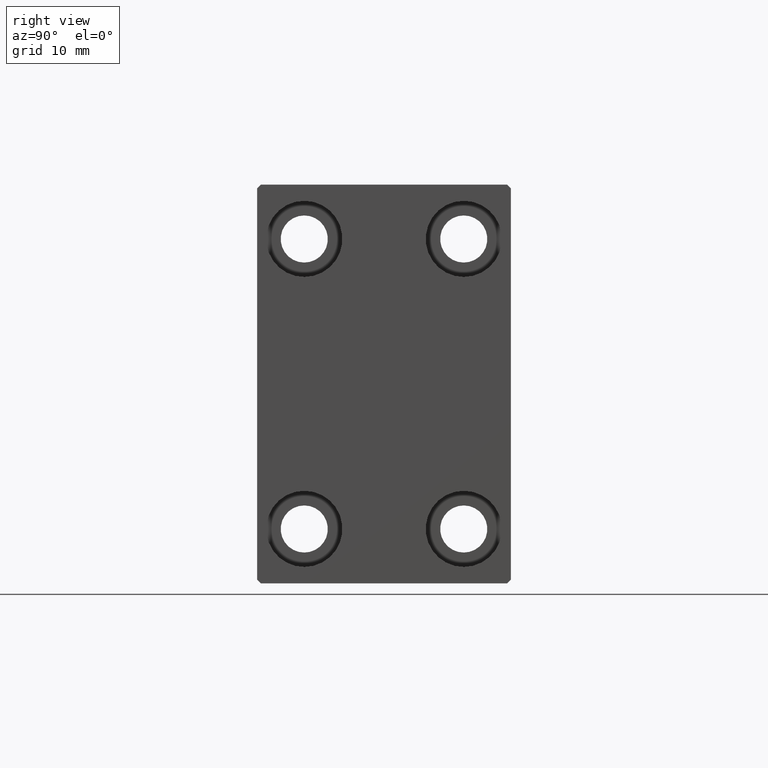
[diagram: clean part render]
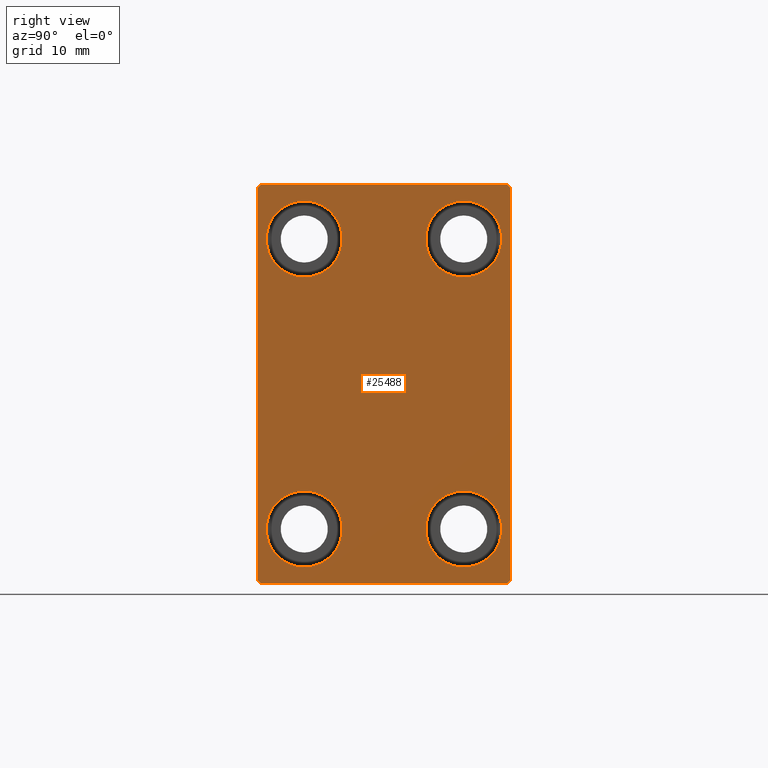
[diagram: same view with one face highlighted and labeled with its STEP entity id]
A machine part, right view. The second image highlights one B-rep face of the part: STEP entity #25488.
In plain terms, the highlighted planar face has unit normal (1, 0, 0).
Its self-contained STEP definition (entity closure, byte-faithful):
#74 = VECTOR ( 'NONE', #17671, 1000.000000000000114 ) ;
#251 = EDGE_LOOP ( 'NONE', ( #37012, #20372 ) ) ;
#693 = LINE ( 'NONE', #18234, #23848 ) ;
#872 = VERTEX_POINT ( 'NONE', #23555 ) ;
#1037 = VERTEX_POINT ( 'NONE', #34331 ) ;
#1508 = LINE ( 'NONE', #14794, #41056 ) ;
#2621 = CARTESIAN_POINT ( 'NONE',  ( 56.00000000000000000, 11.00000000000000355, 20.00000000000000000 ) ) ;
#2844 = DIRECTION ( 'NONE',  ( 0.000000000000000000, 0.000000000000000000, 1.000000000000000000 ) ) ;
#3070 = AXIS2_PLACEMENT_3D ( 'NONE', #28839, #42565, #28181 ) ;
#3360 = DIRECTION ( 'NONE',  ( 0.000000000000000000, 0.000000000000000000, 1.000000000000000000 ) ) ;
#3897 = CARTESIAN_POINT ( 'NONE',  ( 56.00000000000000000, -11.00000000000000355, -20.00000000000000000 ) ) ;
#3941 = VECTOR ( 'NONE', #16958, 1000.000000000000114 ) ;
#3944 = CARTESIAN_POINT ( 'NONE',  ( 56.00000000000000000, 22.25000000000000711, -22.25000000000000711 ) ) ;
#5371 = VERTEX_POINT ( 'NONE', #14354 ) ;
#5712 = EDGE_CURVE ( 'NONE', #872, #11405, #36314, .T. ) ;
#5959 = CARTESIAN_POINT ( 'NONE',  ( 56.00000000000000000, -22.25000000000000355, -22.25000000000000355 ) ) ;
#6047 = EDGE_CURVE ( 'NONE', #10192, #8636, #28656, .T. ) ;
#6102 = VECTOR ( 'NONE', #11431, 1000.000000000000000 ) ;
#6842 = AXIS2_PLACEMENT_3D ( 'NONE', #41136, #37530, #10100 ) ;
#7156 = AXIS2_PLACEMENT_3D ( 'NONE', #26582, #40077, #43002 ) ;
#7189 = CIRCLE ( 'NONE', #12232, 5.250000000000000888 ) ;
#7537 = VECTOR ( 'NONE', #12861, 1000.000000000000114 ) ;
#8323 = EDGE_CURVE ( 'NONE', #18112, #5371, #42240, .T. ) ;
#8455 = CARTESIAN_POINT ( 'NONE',  ( 56.00000000000000000, -11.00000000000000355, -14.75000000000000000 ) ) ;
#8636 = VERTEX_POINT ( 'NONE', #10928 ) ;
#8701 = CARTESIAN_POINT ( 'NONE',  ( 56.00000000000000000, -16.99999999999999289, 27.49999999999999645 ) ) ;
#8815 = FACE_BOUND ( 'NONE', #43334, .T. ) ;
#8899 = EDGE_CURVE ( 'NONE', #20283, #18112, #19454, .T. ) ;
#9026 = AXIS2_PLACEMENT_3D ( 'NONE', #2621, #13196, #43789 ) ;
#9262 = ORIENTED_EDGE ( 'NONE', *, *, #11283, .T. ) ;
#9501 = AXIS2_PLACEMENT_3D ( 'NONE', #36807, #43336, #2844 ) ;
#9502 = EDGE_CURVE ( 'NONE', #21472, #24737, #34123, .T. ) ;
#10100 = DIRECTION ( 'NONE',  ( 0.000000000000000000, 0.000000000000000000, 1.000000000000000000 ) ) ;
#10192 = VERTEX_POINT ( 'NONE', #27916 ) ;
#10209 = DIRECTION ( 'NONE',  ( 0.000000000000000000, 0.000000000000000000, 1.000000000000000000 ) ) ;
#10237 = ORIENTED_EDGE ( 'NONE', *, *, #8323, .T. ) ;
#10339 = ORIENTED_EDGE ( 'NONE', *, *, #32576, .T. ) ;
#10481 = ORIENTED_EDGE ( 'NONE', *, *, #9502, .T. ) ;
#10928 = CARTESIAN_POINT ( 'NONE',  ( 56.00000000000000000, 16.99999999999999289, 27.50000000000000355 ) ) ;
#11120 = CARTESIAN_POINT ( 'NONE',  ( 56.00000000000000000, -11.00000000000000355, -25.25000000000000000 ) ) ;
#11142 = ORIENTED_EDGE ( 'NONE', *, *, #11287, .T. ) ;
#11283 = EDGE_CURVE ( 'NONE', #8636, #17401, #39059, .T. ) ;
#11287 = EDGE_CURVE ( 'NONE', #1037, #24600, #17699, .T. ) ;
#11405 = VERTEX_POINT ( 'NONE', #39967 ) ;
#11431 = DIRECTION ( 'NONE',  ( 0.000000000000000000, 1.000000000000000000, 0.000000000000000000 ) ) ;
#12043 = ORIENTED_EDGE ( 'NONE', *, *, #34789, .T. ) ;
#12232 = AXIS2_PLACEMENT_3D ( 'NONE', #3897, #34042, #10209 ) ;
#12319 = CARTESIAN_POINT ( 'NONE',  ( 56.00000000000000000, -16.99999999999999289, -27.50000000000000355 ) ) ;
#12861 = DIRECTION ( 'NONE',  ( 0.000000000000000000, -0.7071067811865474617, -0.7071067811865474617 ) ) ;
#13122 = CARTESIAN_POINT ( 'NONE',  ( 56.00000000000000000, -11.00000000000000355, 14.75000000000000000 ) ) ;
#13196 = DIRECTION ( 'NONE',  ( -1.000000000000000000, -0.000000000000000000, -0.000000000000000000 ) ) ;
#13800 = CIRCLE ( 'NONE', #9501, 5.250000000000000888 ) ;
#14138 = CARTESIAN_POINT ( 'NONE',  ( 56.00000000000000000, -17.50000000000000000, -26.99999999999999645 ) ) ;
#14354 = CARTESIAN_POINT ( 'NONE',  ( 56.00000000000000000, 17.00000000000000711, -27.50000000000000355 ) ) ;
#14667 = ORIENTED_EDGE ( 'NONE', *, *, #8899, .T. ) ;
#14794 = CARTESIAN_POINT ( 'NONE',  ( 56.00000000000000000, -17.50000000000000000, 27.49999999999999645 ) ) ;
#14802 = CARTESIAN_POINT ( 'NONE',  ( 56.00000000000000000, -17.50000000000000000, -27.50000000000000355 ) ) ;
#15006 = DIRECTION ( 'NONE',  ( 0.000000000000000000, 0.000000000000000000, 1.000000000000000000 ) ) ;
#15153 = CARTESIAN_POINT ( 'NONE',  ( 56.00000000000000000, 11.00000000000000355, -14.75000000000000000 ) ) ;
#16958 = DIRECTION ( 'NONE',  ( -0.000000000000000000, 0.7071067811865474617, -0.7071067811865474617 ) ) ;
#17401 = VERTEX_POINT ( 'NONE', #8701 ) ;
#17671 = DIRECTION ( 'NONE',  ( -0.000000000000000000, 0.7071067811865474617, 0.7071067811865474617 ) ) ;
#17699 = CIRCLE ( 'NONE', #32030, 5.250000000000000888 ) ;
#17883 = DIRECTION ( 'NONE',  ( -0.000000000000000000, -0.7071067811865474617, 0.7071067811865474617 ) ) ;
#18112 = VERTEX_POINT ( 'NONE', #12319 ) ;
#18234 = CARTESIAN_POINT ( 'NONE',  ( 56.00000000000000000, 17.50000000000000711, -27.50000000000000355 ) ) ;
#18388 = DIRECTION ( 'NONE',  ( 0.000000000000000000, 0.000000000000000000, -1.000000000000000000 ) ) ;
#18832 = AXIS2_PLACEMENT_3D ( 'NONE', #21695, #28655, #42385 ) ;
#19158 = VERTEX_POINT ( 'NONE', #43638 ) ;
#19167 = FACE_BOUND ( 'NONE', #24790, .T. ) ;
#19392 = FACE_OUTER_BOUND ( 'NONE', #34421, .T. ) ;
#19454 = LINE ( 'NONE', #5959, #3941 ) ;
#20283 = VERTEX_POINT ( 'NONE', #14138 ) ;
#20372 = ORIENTED_EDGE ( 'NONE', *, *, #26218, .T. ) ;
#20508 = EDGE_LOOP ( 'NONE', ( #10339, #35380 ) ) ;
#21472 = VERTEX_POINT ( 'NONE', #31075 ) ;
#21695 = CARTESIAN_POINT ( 'NONE',  ( 56.00000000000000000, -11.00000000000000355, -20.00000000000000000 ) ) ;
#21740 = EDGE_CURVE ( 'NONE', #24737, #21472, #35887, .T. ) ;
#22462 = VERTEX_POINT ( 'NONE', #23113 ) ;
#23113 = CARTESIAN_POINT ( 'NONE',  ( 56.00000000000000000, 17.50000000000000711, -27.00000000000000355 ) ) ;
#23357 = VERTEX_POINT ( 'NONE', #8455 ) ;
#23555 = CARTESIAN_POINT ( 'NONE',  ( 56.00000000000000000, 11.00000000000000355, 25.25000000000000000 ) ) ;
#23848 = VECTOR ( 'NONE', #28143, 1000.000000000000000 ) ;
#24407 = AXIS2_PLACEMENT_3D ( 'NONE', #34832, #28095, #3360 ) ;
#24600 = VERTEX_POINT ( 'NONE', #15153 ) ;
#24737 = VERTEX_POINT ( 'NONE', #13122 ) ;
#24790 = EDGE_LOOP ( 'NONE', ( #38496, #10481 ) ) ;
#25444 = ORIENTED_EDGE ( 'NONE', *, *, #6047, .T. ) ;
#25488 = ADVANCED_FACE ( 'NONE', ( #8815, #19167, #33322, #29275, #19392 ), #29506, .T. ) ;
#26218 = EDGE_CURVE ( 'NONE', #23357, #37861, #7189, .T. ) ;
#26582 = CARTESIAN_POINT ( 'NONE',  ( 56.00000000000000000, 0.000000000000000000, 0.000000000000000000 ) ) ;
#26636 = ORIENTED_EDGE ( 'NONE', *, *, #30024, .T. ) ;
#26918 = ORIENTED_EDGE ( 'NONE', *, *, #32240, .T. ) ;
#27916 = CARTESIAN_POINT ( 'NONE',  ( 56.00000000000000000, 17.50000000000000000, 26.99999999999999645 ) ) ;
#28095 = DIRECTION ( 'NONE',  ( -1.000000000000000000, -0.000000000000000000, -0.000000000000000000 ) ) ;
#28143 = DIRECTION ( 'NONE',  ( 0.000000000000000000, -1.261617073437677752E-16, 1.000000000000000000 ) ) ;
#28181 = DIRECTION ( 'NONE',  ( 0.000000000000000000, 0.000000000000000000, 1.000000000000000000 ) ) ;
#28437 = VECTOR ( 'NONE', #43123, 1000.000000000000000 ) ;
#28655 = DIRECTION ( 'NONE',  ( -1.000000000000000000, -0.000000000000000000, -0.000000000000000000 ) ) ;
#28656 = LINE ( 'NONE', #35849, #30565 ) ;
#28839 = CARTESIAN_POINT ( 'NONE',  ( 56.00000000000000000, 11.00000000000000355, -20.00000000000000000 ) ) ;
#29275 = FACE_BOUND ( 'NONE', #251, .T. ) ;
#29506 = PLANE ( 'NONE',  #7156 ) ;
#29621 = CARTESIAN_POINT ( 'NONE',  ( 56.00000000000000000, 11.00000000000000355, -20.00000000000000000 ) ) ;
#30024 = EDGE_CURVE ( 'NONE', #5371, #22462, #34754, .T. ) ;
#30565 = VECTOR ( 'NONE', #17883, 1000.000000000000114 ) ;
#30575 = EDGE_CURVE ( 'NONE', #19158, #20283, #1508, .T. ) ;
#31075 = CARTESIAN_POINT ( 'NONE',  ( 56.00000000000000000, -11.00000000000000355, 25.25000000000000000 ) ) ;
#31798 = CIRCLE ( 'NONE', #3070, 5.250000000000000888 ) ;
#32030 = AXIS2_PLACEMENT_3D ( 'NONE', #29621, #36588, #15006 ) ;
#32240 = EDGE_CURVE ( 'NONE', #22462, #10192, #693, .T. ) ;
#32576 = EDGE_CURVE ( 'NONE', #11405, #872, #13800, .T. ) ;
#32900 = EDGE_CURVE ( 'NONE', #37861, #23357, #38915, .T. ) ;
#33217 = CARTESIAN_POINT ( 'NONE',  ( 56.00000000000000000, 17.50000000000000000, 27.50000000000000355 ) ) ;
#33313 = LINE ( 'NONE', #43672, #7537 ) ;
#33322 = FACE_BOUND ( 'NONE', #20508, .T. ) ;
#34042 = DIRECTION ( 'NONE',  ( -1.000000000000000000, -0.000000000000000000, -0.000000000000000000 ) ) ;
#34123 = CIRCLE ( 'NONE', #6842, 5.250000000000000888 ) ;
#34331 = CARTESIAN_POINT ( 'NONE',  ( 56.00000000000000000, 11.00000000000000355, -25.25000000000000000 ) ) ;
#34421 = EDGE_LOOP ( 'NONE', ( #9262, #39492, #41598, #14667, #10237, #26636, #26918, #25444 ) ) ;
#34754 = LINE ( 'NONE', #3944, #74 ) ;
#34789 = EDGE_CURVE ( 'NONE', #24600, #1037, #31798, .T. ) ;
#34832 = CARTESIAN_POINT ( 'NONE',  ( 56.00000000000000000, -11.00000000000000355, 20.00000000000000000 ) ) ;
#35380 = ORIENTED_EDGE ( 'NONE', *, *, #5712, .T. ) ;
#35849 = CARTESIAN_POINT ( 'NONE',  ( 56.00000000000000000, 22.25000000000000355, 22.25000000000000355 ) ) ;
#35887 = CIRCLE ( 'NONE', #24407, 5.250000000000000888 ) ;
#36314 = CIRCLE ( 'NONE', #9026, 5.250000000000000888 ) ;
#36588 = DIRECTION ( 'NONE',  ( -1.000000000000000000, -0.000000000000000000, -0.000000000000000000 ) ) ;
#36807 = CARTESIAN_POINT ( 'NONE',  ( 56.00000000000000000, 11.00000000000000355, 20.00000000000000000 ) ) ;
#37012 = ORIENTED_EDGE ( 'NONE', *, *, #32900, .T. ) ;
#37530 = DIRECTION ( 'NONE',  ( -1.000000000000000000, -0.000000000000000000, -0.000000000000000000 ) ) ;
#37861 = VERTEX_POINT ( 'NONE', #11120 ) ;
#38496 = ORIENTED_EDGE ( 'NONE', *, *, #21740, .T. ) ;
#38915 = CIRCLE ( 'NONE', #18832, 5.250000000000000888 ) ;
#39059 = LINE ( 'NONE', #33217, #28437 ) ;
#39175 = EDGE_CURVE ( 'NONE', #17401, #19158, #33313, .T. ) ;
#39492 = ORIENTED_EDGE ( 'NONE', *, *, #39175, .T. ) ;
#39967 = CARTESIAN_POINT ( 'NONE',  ( 56.00000000000000000, 11.00000000000000355, 14.75000000000000000 ) ) ;
#40077 = DIRECTION ( 'NONE',  ( 1.000000000000000000, 0.000000000000000000, 0.000000000000000000 ) ) ;
#41056 = VECTOR ( 'NONE', #18388, 1000.000000000000000 ) ;
#41136 = CARTESIAN_POINT ( 'NONE',  ( 56.00000000000000000, -11.00000000000000355, 20.00000000000000000 ) ) ;
#41598 = ORIENTED_EDGE ( 'NONE', *, *, #30575, .T. ) ;
#42240 = LINE ( 'NONE', #14802, #6102 ) ;
#42385 = DIRECTION ( 'NONE',  ( 0.000000000000000000, 0.000000000000000000, 1.000000000000000000 ) ) ;
#42565 = DIRECTION ( 'NONE',  ( -1.000000000000000000, -0.000000000000000000, -0.000000000000000000 ) ) ;
#43002 = DIRECTION ( 'NONE',  ( 0.000000000000000000, 0.000000000000000000, -1.000000000000000000 ) ) ;
#43123 = DIRECTION ( 'NONE',  ( 0.000000000000000000, -1.000000000000000000, -1.982541115402065110E-16 ) ) ;
#43334 = EDGE_LOOP ( 'NONE', ( #11142, #12043 ) ) ;
#43336 = DIRECTION ( 'NONE',  ( -1.000000000000000000, -0.000000000000000000, -0.000000000000000000 ) ) ;
#43638 = CARTESIAN_POINT ( 'NONE',  ( 56.00000000000000000, -17.50000000000000000, 26.99999999999998934 ) ) ;
#43672 = CARTESIAN_POINT ( 'NONE',  ( 56.00000000000000000, -22.24999999999999645, 22.24999999999999645 ) ) ;
#43789 = DIRECTION ( 'NONE',  ( 0.000000000000000000, 0.000000000000000000, 1.000000000000000000 ) ) ;